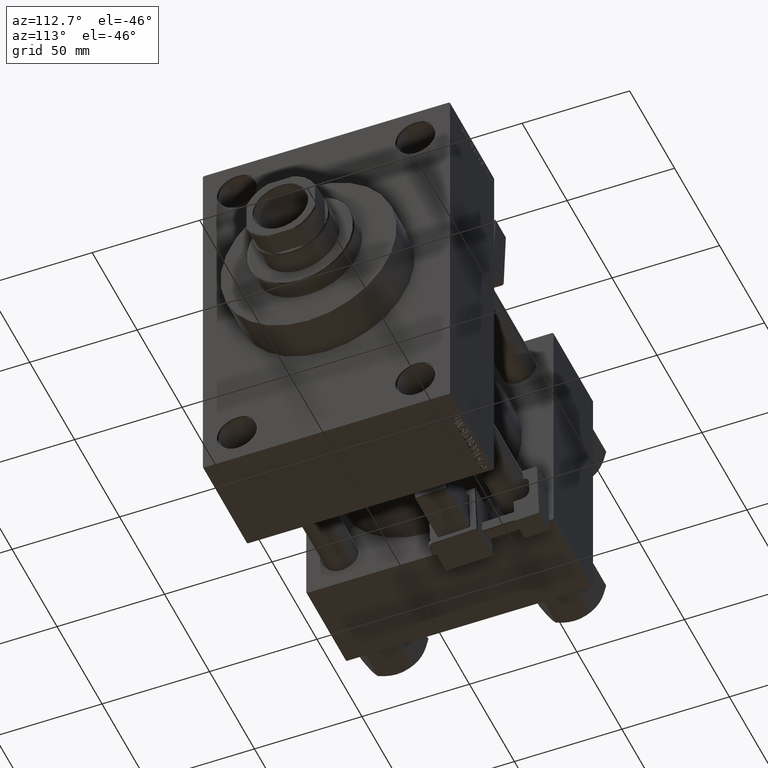
[diagram: clean part render]
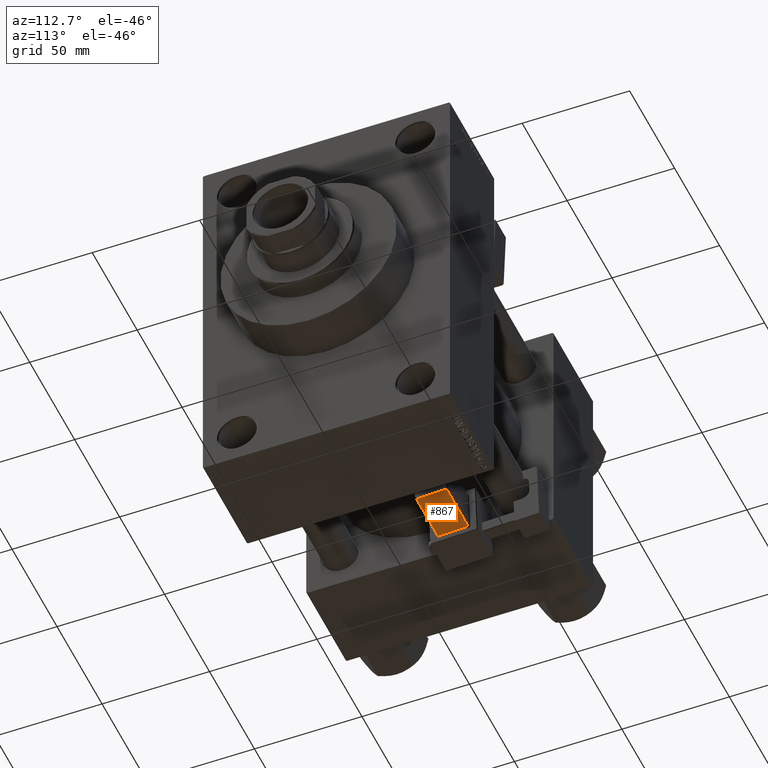
[diagram: same view with one face highlighted and labeled with its STEP entity id]
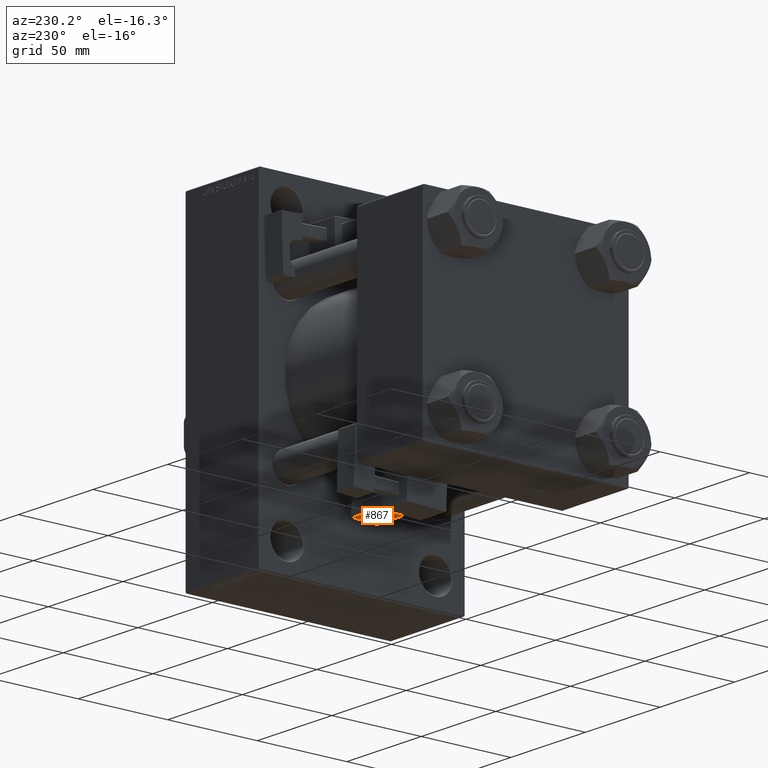
[diagram: same view with one face highlighted and labeled with its STEP entity id]
A machine part, auxiliary view. The second image highlights one B-rep face of the part: STEP entity #867.
A second angle (auxiliary view) of the same face is appended — the face is thin or edge-on in the first view.
In plain terms, the highlighted planar face has unit normal (-0, -0.0353, 0.9994).
Its self-contained STEP definition (entity closure, byte-faithful):
#233 = CARTESIAN_POINT ( 'NONE',  ( 33.25000000000000000, -25.75000000000000355, 2.000000000000003109 ) ) ;
#313 = EDGE_CURVE ( 'NONE', #37155, #23625, #27436, .T. ) ;
#432 = EDGE_CURVE ( 'NONE', #15205, #633, #10047, .T. ) ;
#633 = VERTEX_POINT ( 'NONE', #5715 ) ;
#867 = ADVANCED_FACE ( 'NONE', ( #15763 ), #46268, .F. ) ;
#1204 = LINE ( 'NONE', #8516, #35206 ) ;
#2853 = DIRECTION ( 'NONE',  ( 1.000000000000000000, -0.000000000000000000, 1.334402673828313339E-16 ) ) ;
#3414 = DIRECTION ( 'NONE',  ( 1.000000000000000000, 0.000000000000000000, 1.334402673828313339E-16 ) ) ;
#5715 = CARTESIAN_POINT ( 'NONE',  ( 9.250000000000005329, -39.75000000000000000, 1.999999999999998224 ) ) ;
#8299 = VECTOR ( 'NONE', #2853, 1000.000000000000000 ) ;
#8516 = CARTESIAN_POINT ( 'NONE',  ( 9.250000000000005329, -25.25000000000000000, 2.000000000000000000 ) ) ;
#10047 = LINE ( 'NONE', #10788, #17942 ) ;
#10788 = CARTESIAN_POINT ( 'NONE',  ( 33.75000000000000000, -39.75000000000000000, 2.000000000000001332 ) ) ;
#15205 = VERTEX_POINT ( 'NONE', #48426 ) ;
#15763 = FACE_OUTER_BOUND ( 'NONE', #37600, .T. ) ;
#17942 = VECTOR ( 'NONE', #41052, 1000.000000000000000 ) ;
#18717 = CARTESIAN_POINT ( 'NONE',  ( 33.75000000000000000, -25.75000000000000355, 2.000000000000003109 ) ) ;
#23625 = VERTEX_POINT ( 'NONE', #233 ) ;
#24873 = EDGE_CURVE ( 'NONE', #23625, #15205, #30196, .T. ) ;
#27404 = ORIENTED_EDGE ( 'NONE', *, *, #24873, .T. ) ;
#27436 = LINE ( 'NONE', #18717, #8299 ) ;
#29516 = ORIENTED_EDGE ( 'NONE', *, *, #432, .T. ) ;
#29891 = EDGE_CURVE ( 'NONE', #633, #37155, #1204, .T. ) ;
#30196 = LINE ( 'NONE', #41319, #41483 ) ;
#34911 = CARTESIAN_POINT ( 'NONE',  ( 33.75000000000000000, -25.25000000000000000, 2.000000000000003109 ) ) ;
#35206 = VECTOR ( 'NONE', #36475, 1000.000000000000000 ) ;
#36475 = DIRECTION ( 'NONE',  ( -1.543213096464132036E-32, 1.000000000000000000, 1.156482317317871725E-16 ) ) ;
#37155 = VERTEX_POINT ( 'NONE', #46412 ) ;
#37600 = EDGE_LOOP ( 'NONE', ( #27404, #29516, #47689, #48743 ) ) ;
#41052 = DIRECTION ( 'NONE',  ( -1.000000000000000000, 0.000000000000000000, -1.334402673828313339E-16 ) ) ;
#41319 = CARTESIAN_POINT ( 'NONE',  ( 33.25000000000000000, -40.25000000000000000, 2.000000000000001332 ) ) ;
#41347 = AXIS2_PLACEMENT_3D ( 'NONE', #34911, #42477, #3414 ) ;
#41483 = VECTOR ( 'NONE', #48890, 1000.000000000000000 ) ;
#42477 = DIRECTION ( 'NONE',  ( -1.334402673828313339E-16, -1.156482317317871725E-16, 1.000000000000000000 ) ) ;
#46268 = PLANE ( 'NONE',  #41347 ) ;
#46412 = CARTESIAN_POINT ( 'NONE',  ( 9.250000000000005329, -25.75000000000000355, 1.999999999999999556 ) ) ;
#47689 = ORIENTED_EDGE ( 'NONE', *, *, #29891, .T. ) ;
#48426 = CARTESIAN_POINT ( 'NONE',  ( 33.25000000000000000, -39.75000000000000000, 2.000000000000001332 ) ) ;
#48743 = ORIENTED_EDGE ( 'NONE', *, *, #313, .T. ) ;
#48890 = DIRECTION ( 'NONE',  ( 5.473822126268816683E-48, -1.000000000000000000, -1.156482317317871725E-16 ) ) ;